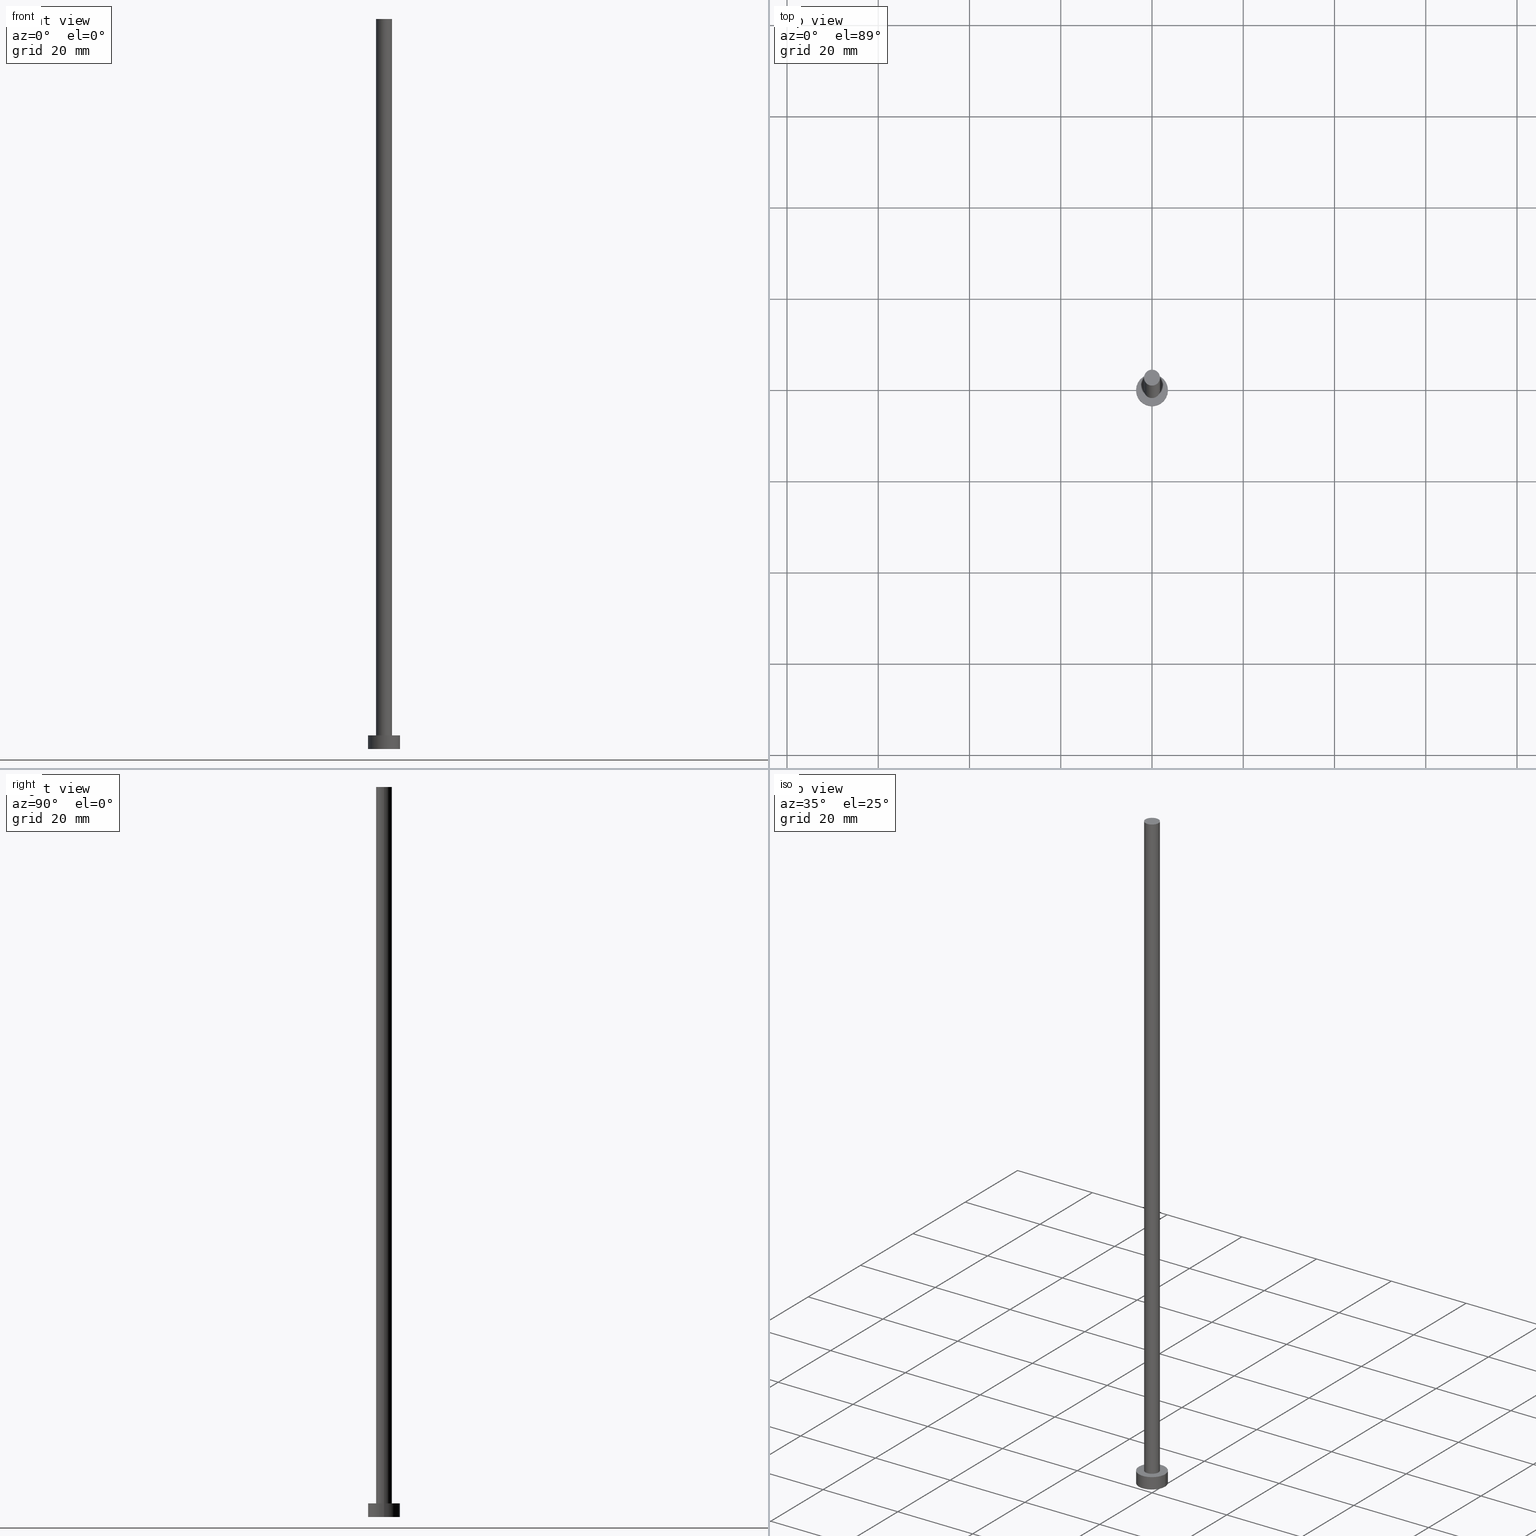
[diagram: canonical four-view strip — front | top / right | iso, engineering-drawing reading convention]
A machine part, canonical four-view strip (front | top / right | iso — engineering-drawing reading convention). The complete STEP part file that produces these views, byte-faithful:
ISO-10303-21;
HEADER;
FILE_DESCRIPTION (( 'STEP AP203' ),
    '1' );
FILE_NAME ('2998.STEP',
    '2023-02-13T15:34:44',
    ( '' ),
    ( '' ),
    'SwSTEP 2.0',
    'SolidWorks 2019',
    '' );
FILE_SCHEMA (( 'CONFIG_CONTROL_DESIGN' ));
ENDSEC;

DATA;
#1 = DIRECTION ( 'NONE',  ( 0.000000000000000000, 0.000000000000000000, 1.000000000000000000 ) ) ;
#2 = ORIENTED_EDGE ( 'NONE', *, *, #80, .T. ) ;
#3 = AXIS2_PLACEMENT_3D ( 'NONE', #117, #223, #17 ) ;
#4 = PERSON_AND_ORGANIZATION ( #236, #229 ) ;
#5 = PERSON_AND_ORGANIZATION ( #236, #229 ) ;
#6 = FACE_OUTER_BOUND ( 'NONE', #119, .T. ) ;
#7 = CARTESIAN_POINT ( 'NONE',  ( 1.750000000000000000, 2.143131898507868297E-16, 3.000000000000000000 ) ) ;
#8 = LOCAL_TIME ( 16, 34, 44.00000000000000000, #177 ) ;
#9 = ORIENTED_EDGE ( 'NONE', *, *, #181, .T. ) ;
#10 = PERSON_AND_ORGANIZATION_ROLE ( 'creator' ) ;
#11 = APPROVAL_DATE_TIME ( #71, #247 ) ;
#12 = LOCAL_TIME ( 16, 34, 44.00000000000000000, #199 ) ;
#13 = CALENDAR_DATE ( 2023, 13, 2 ) ;
#14 = CC_DESIGN_DATE_AND_TIME_ASSIGNMENT ( #159, #35, ( #207 ) ) ;
#15 = FACE_OUTER_BOUND ( 'NONE', #174, .T. ) ;
#16 = AXIS2_PLACEMENT_3D ( 'NONE', #44, #210, #191 ) ;
#17 = DIRECTION ( 'NONE',  ( -1.000000000000000000, 0.000000000000000000, 0.000000000000000000 ) ) ;
#18 = ADVANCED_FACE ( 'NONE', ( #252, #15 ), #96, .T. ) ;
#19 = ORIENTED_EDGE ( 'NONE', *, *, #181, .F. ) ;
#20 = VECTOR ( 'NONE', #231, 1000.000000000000000 ) ;
#21 = APPROVAL_STATUS ( 'not_yet_approved' ) ;
#22 = CC_DESIGN_PERSON_AND_ORGANIZATION_ASSIGNMENT ( #4, #167, ( #175 ) ) ;
#23 = ORIENTED_EDGE ( 'NONE', *, *, #187, .T. ) ;
#24 = VERTEX_POINT ( 'NONE', #91 ) ;
#25 = DIRECTION ( 'NONE',  ( -0.000000000000000000, -0.000000000000000000, -1.000000000000000000 ) ) ;
#26 = APPLICATION_PROTOCOL_DEFINITION ( 'international standard', 'config_control_design', 1994, #110 ) ;
#27 = EDGE_CURVE ( 'NONE', #152, #83, #67, .T. ) ;
#28 = DIRECTION ( 'NONE',  ( -1.000000000000000000, 0.000000000000000000, 0.000000000000000000 ) ) ;
#29 = AXIS2_PLACEMENT_3D ( 'NONE', #197, #148, #228 ) ;
#30 = PRODUCT_DEFINITION_SHAPE ( 'NONE', 'NONE',  #207 ) ;
#31 = APPROVAL_PERSON_ORGANIZATION ( #79, #51, #163 ) ;
#32 = CARTESIAN_POINT ( 'NONE',  ( 0.000000000000000000, 0.000000000000000000, 3.000000000000000000 ) ) ;
#33 = SECURITY_CLASSIFICATION ( '', '', #240 ) ;
#34 = CARTESIAN_POINT ( 'NONE',  ( 0.000000000000000000, 0.000000000000000000, 160.0000000000000000 ) ) ;
#35 = DATE_TIME_ROLE ( 'creation_date' ) ;
#36 = ORIENTED_EDGE ( 'NONE', *, *, #57, .F. ) ;
#37 = DIRECTION ( 'NONE',  ( 0.000000000000000000, 0.000000000000000000, 1.000000000000000000 ) ) ;
#38 = PLANE ( 'NONE',  #242 ) ;
#39 = CIRCLE ( 'NONE', #222, 1.750000000000000000 ) ;
#40 =( NAMED_UNIT ( * ) PLANE_ANGLE_UNIT ( ) SI_UNIT ( $, .RADIAN. ) );
#41 = AXIS2_PLACEMENT_3D ( 'NONE', #34, #113, #76 ) ;
#42 = EDGE_LOOP ( 'NONE', ( #241, #2, #60, #246 ) ) ;
#43 = COORDINATED_UNIVERSAL_TIME_OFFSET ( 1, 0, .AHEAD. ) ;
#44 = CARTESIAN_POINT ( 'NONE',  ( 0.000000000000000000, 0.000000000000000000, 3.000000000000000000 ) ) ;
#45 = ORIENTED_EDGE ( 'NONE', *, *, #27, .T. ) ;
#46 = CARTESIAN_POINT ( 'NONE',  ( -3.500000000000000444, 0.000000000000000000, 3.000000000000000000 ) ) ;
#47 = VERTEX_POINT ( 'NONE', #62 ) ;
#48 = CARTESIAN_POINT ( 'NONE',  ( 1.750000000000000000, 2.143131898507868297E-16, 160.0000000000000000 ) ) ;
#49 = DIRECTION ( 'NONE',  ( 1.000000000000000000, 0.000000000000000000, 0.000000000000000000 ) ) ;
#50 = CIRCLE ( 'NONE', #224, 3.500000000000000444 ) ;
#51 = APPROVAL ( #21, 'NEUR�EN�' ) ;
#52 = APPROVAL_DATE_TIME ( #69, #114 ) ;
#53 = DIRECTION ( 'NONE',  ( -1.000000000000000000, 0.000000000000000000, 0.000000000000000000 ) ) ;
#54 = EDGE_CURVE ( 'NONE', #233, #64, #155, .T. ) ;
#55 = CARTESIAN_POINT ( 'NONE',  ( 0.000000000000000000, 0.000000000000000000, 3.000000000000000000 ) ) ;
#56 = CIRCLE ( 'NONE', #211, 1.750000000000000000 ) ;
#57 = EDGE_CURVE ( 'NONE', #64, #47, #39, .T. ) ;
#58 = CARTESIAN_POINT ( 'NONE',  ( 0.000000000000000000, 0.000000000000000000, 0.000000000000000000 ) ) ;
#59 = DATE_AND_TIME ( #189, #170 ) ;
#60 = ORIENTED_EDGE ( 'NONE', *, *, #92, .T. ) ;
#61 = CC_DESIGN_DATE_AND_TIME_ASSIGNMENT ( #144, #77, ( #33 ) ) ;
#62 = CARTESIAN_POINT ( 'NONE',  ( -1.750000000000000000, 0.000000000000000000, 3.000000000000000000 ) ) ;
#63 = CARTESIAN_POINT ( 'NONE',  ( 0.000000000000000000, 0.000000000000000000, 160.0000000000000000 ) ) ;
#64 = VERTEX_POINT ( 'NONE', #7 ) ;
#65 = DIRECTION ( 'NONE',  ( -0.000000000000000000, -0.000000000000000000, -1.000000000000000000 ) ) ;
#66 = EDGE_CURVE ( 'NONE', #186, #152, #192, .T. ) ;
#67 = LINE ( 'NONE', #46, #173 ) ;
#68 = APPROVAL_ROLE ( '' ) ;
#69 = DATE_AND_TIME ( #161, #8 ) ;
#70 = CARTESIAN_POINT ( 'NONE',  ( -3.500000000000000444, 0.000000000000000000, 3.000000000000000000 ) ) ;
#71 = DATE_AND_TIME ( #218, #12 ) ;
#72 = AXIS2_PLACEMENT_3D ( 'NONE', #150, #130, #89 ) ;
#73 = PERSON_AND_ORGANIZATION ( #236, #229 ) ;
#74 = CC_DESIGN_PERSON_AND_ORGANIZATION_ASSIGNMENT ( #101, #208, ( #156 ) ) ;
#75 = ORIENTED_EDGE ( 'NONE', *, *, #54, .F. ) ;
#76 = DIRECTION ( 'NONE',  ( 1.000000000000000000, 0.000000000000000000, 0.000000000000000000 ) ) ;
#77 = DATE_TIME_ROLE ( 'classification_date' ) ;
#78 = EDGE_LOOP ( 'NONE', ( #129, #215, #45, #9 ) ) ;
#79 = PERSON_AND_ORGANIZATION ( #236, #229 ) ;
#80 = EDGE_CURVE ( 'NONE', #186, #196, #88, .T. ) ;
#81 = PERSON_AND_ORGANIZATION_ROLE ( 'classification_officer' ) ;
#82 = EDGE_CURVE ( 'NONE', #24, #47, #171, .T. ) ;
#83 = VERTEX_POINT ( 'NONE', #127 ) ;
#84 = DIRECTION ( 'NONE',  ( 0.000000000000000000, 0.000000000000000000, 1.000000000000000000 ) ) ;
#85 = ORIENTED_EDGE ( 'NONE', *, *, #187, .F. ) ;
#86 = ORIENTED_EDGE ( 'NONE', *, *, #165, .F. ) ;
#87 = AXIS2_PLACEMENT_3D ( 'NONE', #251, #234, #53 ) ;
#88 = LINE ( 'NONE', #195, #137 ) ;
#89 = DIRECTION ( 'NONE',  ( 1.000000000000000000, 0.000000000000000000, 0.000000000000000000 ) ) ;
#90 = UNCERTAINTY_MEASURE_WITH_UNIT (LENGTH_MEASURE( 1.000000000000000082E-05 ), #122, 'distance_accuracy_value', 'NONE');
#91 = CARTESIAN_POINT ( 'NONE',  ( -1.750000000000000000, 0.000000000000000000, 160.0000000000000000 ) ) ;
#92 = EDGE_CURVE ( 'NONE', #196, #83, #123, .T. ) ;
#93 = ORIENTED_EDGE ( 'NONE', *, *, #54, .T. ) ;
#94 = APPROVAL_STATUS ( 'not_yet_approved' ) ;
#95 = DIRECTION ( 'NONE',  ( 1.000000000000000000, 0.000000000000000000, 0.000000000000000000 ) ) ;
#96 = PLANE ( 'NONE',  #232 ) ;
#97 = APPROVAL_ROLE ( '' ) ;
#98 = CC_DESIGN_SECURITY_CLASSIFICATION ( #33, ( #156 ) ) ;
#99 = APPROVAL_DATE_TIME ( #59, #51 ) ;
#100 =( NAMED_UNIT ( * ) SI_UNIT ( $, .STERADIAN. ) SOLID_ANGLE_UNIT ( ) );
#101 = PERSON_AND_ORGANIZATION ( #236, #229 ) ;
#102 = CARTESIAN_POINT ( 'NONE',  ( -1.750000000000000000, 0.000000000000000000, 160.0000000000000000 ) ) ;
#103 = DIRECTION ( 'NONE',  ( 0.000000000000000000, 0.000000000000000000, 1.000000000000000000 ) ) ;
#104 = CARTESIAN_POINT ( 'NONE',  ( 0.000000000000000000, 0.000000000000000000, 3.000000000000000000 ) ) ;
#105 = ORIENTED_EDGE ( 'NONE', *, *, #92, .F. ) ;
#106 = PLANE ( 'NONE',  #29 ) ;
#107 = ADVANCED_FACE ( 'NONE', ( #172 ), #106, .T. ) ;
#108 = CLOSED_SHELL ( 'NONE', ( #185, #216, #146, #18, #243, #140, #107 ) ) ;
#109 = DIRECTION ( 'NONE',  ( 1.000000000000000000, 0.000000000000000000, 0.000000000000000000 ) ) ;
#110 = APPLICATION_CONTEXT ( 'configuration controlled 3d designs of mechanical parts and assemblies' ) ;
#111 = CIRCLE ( 'NONE', #41, 1.750000000000000000 ) ;
#112 = DIRECTION ( 'NONE',  ( 0.000000000000000000, 0.000000000000000000, 1.000000000000000000 ) ) ;
#113 = DIRECTION ( 'NONE',  ( 0.000000000000000000, 0.000000000000000000, 1.000000000000000000 ) ) ;
#114 = APPROVAL ( #94, 'NEUR�EN�' ) ;
#115 = PERSON_AND_ORGANIZATION ( #236, #229 ) ;
#116 = CIRCLE ( 'NONE', #166, 1.750000000000000000 ) ;
#117 = CARTESIAN_POINT ( 'NONE',  ( 0.000000000000000000, 0.000000000000000000, 3.000000000000000000 ) ) ;
#118 = PERSON_AND_ORGANIZATION_ROLE ( 'creator' ) ;
#119 = EDGE_LOOP ( 'NONE', ( #75, #249, #149, #23 ) ) ;
#120 = DIRECTION ( 'NONE',  ( 1.000000000000000000, 0.000000000000000000, 0.000000000000000000 ) ) ;
#121 = CC_DESIGN_APPROVAL ( #114, ( #156 ) ) ;
#122 =( LENGTH_UNIT ( ) NAMED_UNIT ( * ) SI_UNIT ( .MILLI., .METRE. ) );
#123 = CIRCLE ( 'NONE', #72, 3.500000000000000444 ) ;
#124 = MANIFOLD_SOLID_BREP ( 'P�idat vysunut�m3', #108 ) ;
#125 = EDGE_LOOP ( 'NONE', ( #85, #36 ) ) ;
#126 = CC_DESIGN_APPROVAL ( #51, ( #33 ) ) ;
#127 = CARTESIAN_POINT ( 'NONE',  ( -3.500000000000000444, 0.000000000000000000, 0.000000000000000000 ) ) ;
#128 = AXIS2_PLACEMENT_3D ( 'NONE', #104, #84, #245 ) ;
#129 = ORIENTED_EDGE ( 'NONE', *, *, #80, .F. ) ;
#130 = DIRECTION ( 'NONE',  ( 0.000000000000000000, 0.000000000000000000, 1.000000000000000000 ) ) ;
#131 = EDGE_LOOP ( 'NONE', ( #19, #105 ) ) ;
#132 = APPROVAL_PERSON_ORGANIZATION ( #115, #114, #97 ) ;
#133 = MECHANICAL_CONTEXT ( 'NONE', #212, 'mechanical' ) ;
#134 = DIRECTION ( 'NONE',  ( 1.000000000000000000, 0.000000000000000000, -0.000000000000000000 ) ) ;
#135 = APPROVAL_STATUS ( 'not_yet_approved' ) ;
#136 = EDGE_CURVE ( 'NONE', #152, #186, #182, .T. ) ;
#137 = VECTOR ( 'NONE', #25, 1000.000000000000000 ) ;
#138 = CARTESIAN_POINT ( 'NONE',  ( 3.500000000000000444, 4.286263797015737088E-16, 3.000000000000000000 ) ) ;
#139 = DIRECTION ( 'NONE',  ( -0.000000000000000000, -0.000000000000000000, -1.000000000000000000 ) ) ;
#140 = ADVANCED_FACE ( 'NONE', ( #6 ), #168, .T. ) ;
#141 = DIRECTION ( 'NONE',  ( 1.000000000000000000, 0.000000000000000000, -0.000000000000000000 ) ) ;
#142 = SHAPE_DEFINITION_REPRESENTATION ( #30, #193 ) ;
#143 = ORIENTED_EDGE ( 'NONE', *, *, #165, .T. ) ;
#144 = DATE_AND_TIME ( #184, #160 ) ;
#145 =( GEOMETRIC_REPRESENTATION_CONTEXT ( 3 ) GLOBAL_UNCERTAINTY_ASSIGNED_CONTEXT ( ( #90 ) ) GLOBAL_UNIT_ASSIGNED_CONTEXT ( ( #122, #40, #100 ) ) REPRESENTATION_CONTEXT ( 'NONE', 'WORKASPACE' ) );
#146 = ADVANCED_FACE ( 'NONE', ( #254 ), #204, .T. ) ;
#147 = COORDINATED_UNIVERSAL_TIME_OFFSET ( 1, 0, .AHEAD. ) ;
#148 = DIRECTION ( 'NONE',  ( 0.000000000000000000, 0.000000000000000000, 1.000000000000000000 ) ) ;
#149 = ORIENTED_EDGE ( 'NONE', *, *, #82, .T. ) ;
#150 = CARTESIAN_POINT ( 'NONE',  ( 0.000000000000000000, 0.000000000000000000, 0.000000000000000000 ) ) ;
#151 = AXIS2_PLACEMENT_3D ( 'NONE', #55, #139, #220 ) ;
#152 = VERTEX_POINT ( 'NONE', #70 ) ;
#153 = CARTESIAN_POINT ( 'NONE',  ( 0.000000000000000000, 0.000000000000000000, 0.000000000000000000 ) ) ;
#154 = DIRECTION ( 'NONE',  ( 1.000000000000000000, 0.000000000000000000, 0.000000000000000000 ) ) ;
#155 = LINE ( 'NONE', #48, #244 ) ;
#156 = PRODUCT_DEFINITION_FORMATION_WITH_SPECIFIED_SOURCE ( 'LIBOVOLN�', '', #175, .NOT_KNOWN. ) ;
#157 = CYLINDRICAL_SURFACE ( 'NONE', #87, 1.750000000000000000 ) ;
#158 = CC_DESIGN_PERSON_AND_ORGANIZATION_ASSIGNMENT ( #179, #118, ( #156 ) ) ;
#159 = DATE_AND_TIME ( #13, #202 ) ;
#160 = LOCAL_TIME ( 16, 34, 44.00000000000000000, #147 ) ;
#161 = CALENDAR_DATE ( 2023, 13, 2 ) ;
#162 = FACE_OUTER_BOUND ( 'NONE', #131, .T. ) ;
#163 = APPROVAL_ROLE ( '' ) ;
#164 = CC_DESIGN_APPROVAL ( #247, ( #207 ) ) ;
#165 = EDGE_CURVE ( 'NONE', #233, #24, #116, .T. ) ;
#166 = AXIS2_PLACEMENT_3D ( 'NONE', #239, #37, #120 ) ;
#167 = PERSON_AND_ORGANIZATION_ROLE ( 'design_owner' ) ;
#168 = CYLINDRICAL_SURFACE ( 'NONE', #205, 1.750000000000000000 ) ;
#169 = ORIENTED_EDGE ( 'NONE', *, *, #226, .T. ) ;
#170 = LOCAL_TIME ( 16, 34, 44.00000000000000000, #43 ) ;
#171 = LINE ( 'NONE', #102, #20 ) ;
#172 = FACE_OUTER_BOUND ( 'NONE', #209, .T. ) ;
#173 = VECTOR ( 'NONE', #217, 1000.000000000000000 ) ;
#174 = EDGE_LOOP ( 'NONE', ( #198, #183 ) ) ;
#175 = PRODUCT ( '2998', '2998', '', ( #133 ) ) ;
#176 = APPROVAL_PERSON_ORGANIZATION ( #203, #247, #68 ) ;
#177 = COORDINATED_UNIVERSAL_TIME_OFFSET ( 1, 0, .AHEAD. ) ;
#178 = FACE_OUTER_BOUND ( 'NONE', #194, .T. ) ;
#179 = PERSON_AND_ORGANIZATION ( #236, #229 ) ;
#180 = CARTESIAN_POINT ( 'NONE',  ( 3.500000000000000444, 4.286263797015737088E-16, 0.000000000000000000 ) ) ;
#181 = EDGE_CURVE ( 'NONE', #83, #196, #50, .T. ) ;
#182 = CIRCLE ( 'NONE', #16, 3.500000000000000444 ) ;
#183 = ORIENTED_EDGE ( 'NONE', *, *, #66, .T. ) ;
#184 = CALENDAR_DATE ( 2023, 13, 2 ) ;
#185 = ADVANCED_FACE ( 'NONE', ( #178 ), #157, .T. ) ;
#186 = VERTEX_POINT ( 'NONE', #138 ) ;
#187 = EDGE_CURVE ( 'NONE', #47, #64, #56, .T. ) ;
#188 = APPLICATION_PROTOCOL_DEFINITION ( 'international standard', 'config_control_design', 1994, #212 ) ;
#189 = CALENDAR_DATE ( 2023, 13, 2 ) ;
#190 = PRODUCT_RELATED_PRODUCT_CATEGORY ( 'detail', '', ( #175 ) ) ;
#191 = DIRECTION ( 'NONE',  ( 1.000000000000000000, 0.000000000000000000, 0.000000000000000000 ) ) ;
#192 = CIRCLE ( 'NONE', #128, 3.500000000000000444 ) ;
#193 = ADVANCED_BREP_SHAPE_REPRESENTATION ( '2998', ( #124, #237 ), #145 ) ;
#194 = EDGE_LOOP ( 'NONE', ( #86, #93, #248, #255 ) ) ;
#195 = CARTESIAN_POINT ( 'NONE',  ( 3.500000000000000444, 4.286263797015737088E-16, 3.000000000000000000 ) ) ;
#196 = VERTEX_POINT ( 'NONE', #180 ) ;
#197 = CARTESIAN_POINT ( 'NONE',  ( 0.000000000000000000, 0.000000000000000000, 160.0000000000000000 ) ) ;
#198 = ORIENTED_EDGE ( 'NONE', *, *, #136, .T. ) ;
#199 = COORDINATED_UNIVERSAL_TIME_OFFSET ( 1, 0, .AHEAD. ) ;
#200 = CC_DESIGN_PERSON_AND_ORGANIZATION_ASSIGNMENT ( #73, #10, ( #207 ) ) ;
#201 = DIRECTION ( 'NONE',  ( 0.000000000000000000, 0.000000000000000000, 1.000000000000000000 ) ) ;
#202 = LOCAL_TIME ( 16, 34, 44.00000000000000000, #221 ) ;
#203 = PERSON_AND_ORGANIZATION ( #236, #229 ) ;
#204 = CYLINDRICAL_SURFACE ( 'NONE', #3, 3.500000000000000444 ) ;
#205 = AXIS2_PLACEMENT_3D ( 'NONE', #63, #213, #28 ) ;
#206 = CARTESIAN_POINT ( 'NONE',  ( 0.000000000000000000, 0.000000000000000000, 0.000000000000000000 ) ) ;
#207 = PRODUCT_DEFINITION ( 'NEZN�M�', '', #156, #250 ) ;
#208 = PERSON_AND_ORGANIZATION_ROLE ( 'design_supplier' ) ;
#209 = EDGE_LOOP ( 'NONE', ( #169, #143 ) ) ;
#210 = DIRECTION ( 'NONE',  ( 0.000000000000000000, 0.000000000000000000, 1.000000000000000000 ) ) ;
#211 = AXIS2_PLACEMENT_3D ( 'NONE', #219, #112, #95 ) ;
#212 = APPLICATION_CONTEXT ( 'configuration controlled 3d designs of mechanical parts and assemblies' ) ;
#213 = DIRECTION ( 'NONE',  ( -0.000000000000000000, -0.000000000000000000, -1.000000000000000000 ) ) ;
#214 = DIRECTION ( 'NONE',  ( 0.000000000000000000, 0.000000000000000000, 1.000000000000000000 ) ) ;
#215 = ORIENTED_EDGE ( 'NONE', *, *, #136, .F. ) ;
#216 = ADVANCED_FACE ( 'NONE', ( #253 ), #235, .T. ) ;
#217 = DIRECTION ( 'NONE',  ( -0.000000000000000000, -0.000000000000000000, -1.000000000000000000 ) ) ;
#218 = CALENDAR_DATE ( 2023, 13, 2 ) ;
#219 = CARTESIAN_POINT ( 'NONE',  ( 0.000000000000000000, 0.000000000000000000, 3.000000000000000000 ) ) ;
#220 = DIRECTION ( 'NONE',  ( -1.000000000000000000, 0.000000000000000000, 0.000000000000000000 ) ) ;
#221 = COORDINATED_UNIVERSAL_TIME_OFFSET ( 1, 0, .AHEAD. ) ;
#222 = AXIS2_PLACEMENT_3D ( 'NONE', #32, #214, #154 ) ;
#223 = DIRECTION ( 'NONE',  ( -0.000000000000000000, -0.000000000000000000, -1.000000000000000000 ) ) ;
#224 = AXIS2_PLACEMENT_3D ( 'NONE', #206, #201, #109 ) ;
#225 = CARTESIAN_POINT ( 'NONE',  ( 1.750000000000000000, 2.143131898507868297E-16, 160.0000000000000000 ) ) ;
#226 = EDGE_CURVE ( 'NONE', #24, #233, #111, .T. ) ;
#227 = DIRECTION ( 'NONE',  ( 0.000000000000000000, 0.000000000000000000, 1.000000000000000000 ) ) ;
#228 = DIRECTION ( 'NONE',  ( 1.000000000000000000, 0.000000000000000000, -0.000000000000000000 ) ) ;
#229 = ORGANIZATION ( 'NEUR�EN�', 'NEUR�EN�', '' ) ;
#230 = CARTESIAN_POINT ( 'NONE',  ( 0.000000000000000000, 0.000000000000000000, 3.000000000000000000 ) ) ;
#231 = DIRECTION ( 'NONE',  ( -0.000000000000000000, -0.000000000000000000, -1.000000000000000000 ) ) ;
#232 = AXIS2_PLACEMENT_3D ( 'NONE', #230, #103, #134 ) ;
#233 = VERTEX_POINT ( 'NONE', #225 ) ;
#234 = DIRECTION ( 'NONE',  ( -0.000000000000000000, -0.000000000000000000, -1.000000000000000000 ) ) ;
#235 = CYLINDRICAL_SURFACE ( 'NONE', #151, 3.500000000000000444 ) ;
#236 = PERSON ( 'NEUR�EN�', 'NEUR�EN�', 'NEUR�EN�', ('NEUR�EN�'), ('NEUR�EN�'), ('NEUR�EN�') ) ;
#237 = AXIS2_PLACEMENT_3D ( 'NONE', #153, #227, #49 ) ;
#238 = CC_DESIGN_PERSON_AND_ORGANIZATION_ASSIGNMENT ( #5, #81, ( #33 ) ) ;
#239 = CARTESIAN_POINT ( 'NONE',  ( 0.000000000000000000, 0.000000000000000000, 160.0000000000000000 ) ) ;
#240 = SECURITY_CLASSIFICATION_LEVEL ( 'unclassified' ) ;
#241 = ORIENTED_EDGE ( 'NONE', *, *, #66, .F. ) ;
#242 = AXIS2_PLACEMENT_3D ( 'NONE', #58, #1, #141 ) ;
#243 = ADVANCED_FACE ( 'NONE', ( #162 ), #38, .F. ) ;
#244 = VECTOR ( 'NONE', #65, 1000.000000000000000 ) ;
#245 = DIRECTION ( 'NONE',  ( 1.000000000000000000, 0.000000000000000000, 0.000000000000000000 ) ) ;
#246 = ORIENTED_EDGE ( 'NONE', *, *, #27, .F. ) ;
#247 = APPROVAL ( #135, 'NEUR�EN�' ) ;
#248 = ORIENTED_EDGE ( 'NONE', *, *, #57, .T. ) ;
#249 = ORIENTED_EDGE ( 'NONE', *, *, #226, .F. ) ;
#250 = DESIGN_CONTEXT ( 'detailed design', #110, 'design' ) ;
#251 = CARTESIAN_POINT ( 'NONE',  ( 0.000000000000000000, 0.000000000000000000, 160.0000000000000000 ) ) ;
#252 = FACE_BOUND ( 'NONE', #125, .T. ) ;
#253 = FACE_OUTER_BOUND ( 'NONE', #42, .T. ) ;
#254 = FACE_OUTER_BOUND ( 'NONE', #78, .T. ) ;
#255 = ORIENTED_EDGE ( 'NONE', *, *, #82, .F. ) ;
ENDSEC;
END-ISO-10303-21;
